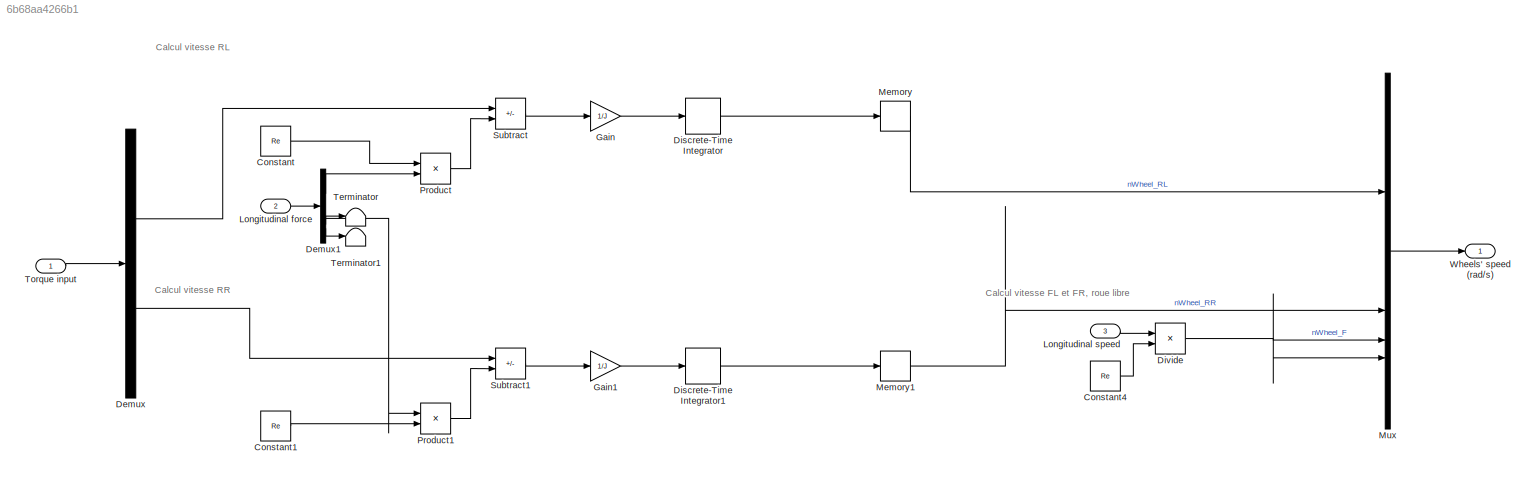
MODEL slx_6b68aa4266b1
KIND model
CONFIG AbsTol = auto
CONFIG EnableMultiTasking = off
CONFIG FixedStep = Ts
CONFIG MaxStep = auto
CONFIG MinStep = auto
CONFIG RelTol = 1e-3
CONFIG SampleTimeConstraint = Unconstrained
CONFIG SolverName = FixedStepDiscrete
CONFIG StartTime = 0.0
CONFIG StopTime = 10.0
BLOCK [Constant] Constant
  Value = Re
BLOCK [Constant] Constant1
  Value = Re
BLOCK [Constant] Constant4
  Value = Re
BLOCK [Demux] Demux
  Outputs = 2
BLOCK [Demux] Demux1
BLOCK [DiscreteIntegrator] Discrete-Time Integrator
  ICPrevOutput = DiscIntNeverNeededParam
  ICPrevScaledInput = DiscIntNeverNeededParam
  InitialCondition = v0/Re
  InitialConditionSetting = Auto
  IntegratorMethod = Integration: Trapezoidal
  SampleTime = -1
BLOCK [DiscreteIntegrator] Discrete-Time Integrator1
  ICPrevOutput = DiscIntNeverNeededParam
  ICPrevScaledInput = DiscIntNeverNeededParam
  InitialCondition = v0/Re
  InitialConditionSetting = Auto
  IntegratorMethod = Integration: Trapezoidal
  SampleTime = -1
BLOCK [Product] Divide
  Inputs = */
BLOCK [Gain] Gain
  Gain = 1/J
BLOCK [Gain] Gain1
  Gain = 1/J
BLOCK [Inport] Longitudinal force
  Port = 2
BLOCK [Inport] Longitudinal speed
  Port = 3
BLOCK [Memory] Memory
  InitialCondition = v0/Re
BLOCK [Memory] Memory1
  InitialCondition = v0/Re
BLOCK [Mux] Mux
  DisplayOption = bar
BLOCK [Product] Product
BLOCK [Product] Product1
BLOCK [Sum] Subtract
  IconShape = rectangular
  Inputs = +-
BLOCK [Sum] Subtract1
  IconShape = rectangular
  Inputs = +-
BLOCK [Terminator] Terminator
BLOCK [Terminator] Terminator1
BLOCK [Inport] Torque input
BLOCK [Outport] Wheels' speed (rad//s)
ANNOTATION (root): Calcul vitesse FL et FR, roue libre
ANNOTATION (root): Calcul vitesse RL
ANNOTATION (root): Calcul vitesse RR
LINE Constant1:1 -> Product1:2
LINE Constant4:1 -> Divide:2
LINE Constant:1 -> Product:1
LINE Demux1:1 -> Product:2
LINE Demux1:2 -> Product1:1
LINE Demux1:3 -> Terminator:1
LINE Demux1:4 -> Terminator1:1
LINE Demux:1 -> Subtract:1
LINE Demux:2 -> Subtract1:1
LINE Discrete-Time Integrator1:1 -> Memory1:1
LINE Discrete-Time Integrator:1 -> Memory:1
NET Divide:1 -> Mux:3, Mux:4
LINE Gain1:1 -> Discrete-Time Integrator1:1
LINE Gain:1 -> Discrete-Time Integrator:1
LINE Longitudinal force:1 -> Demux1:1
LINE Longitudinal speed:1 -> Divide:1
LINE Memory1:1 -> Mux:2
LINE Memory:1 -> Mux:1
LINE Mux:1 -> Wheels' speed (rad//s):1
LINE Product1:1 -> Subtract1:2
LINE Product:1 -> Subtract:2
LINE Subtract1:1 -> Gain1:1
LINE Subtract:1 -> Gain:1
LINE Torque input:1 -> Demux:1
note: NET lines group one-source signal fan-out (src -> all destinations, sorted); 1:1 wires keep LINE
